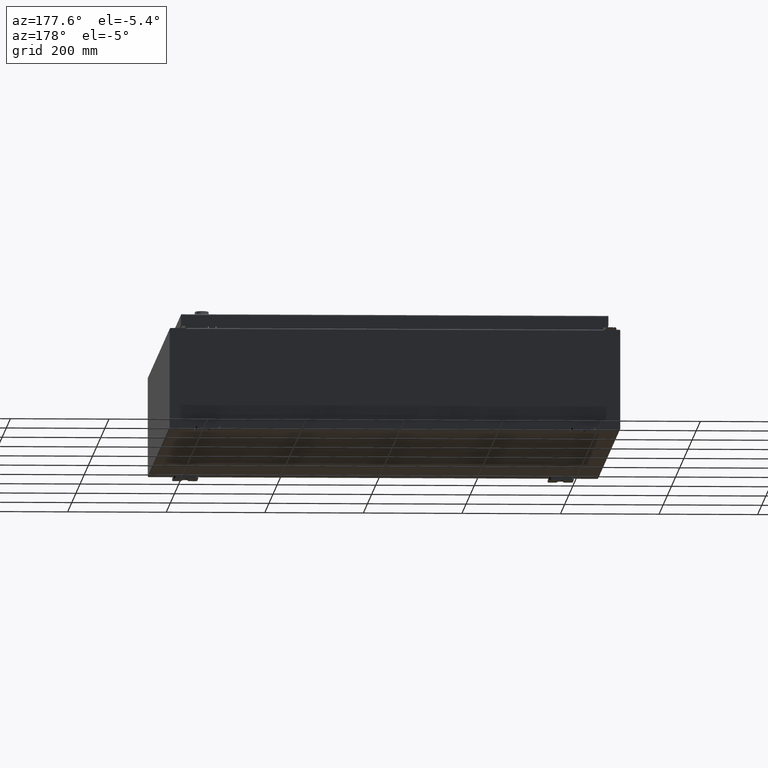
[diagram: clean part render]
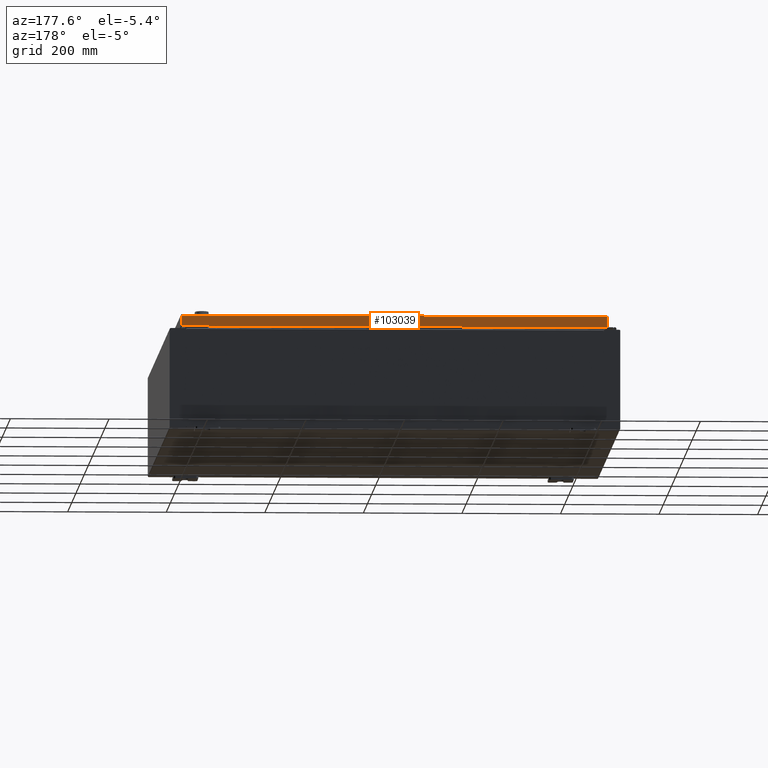
[diagram: same view with one face highlighted and labeled with its STEP entity id]
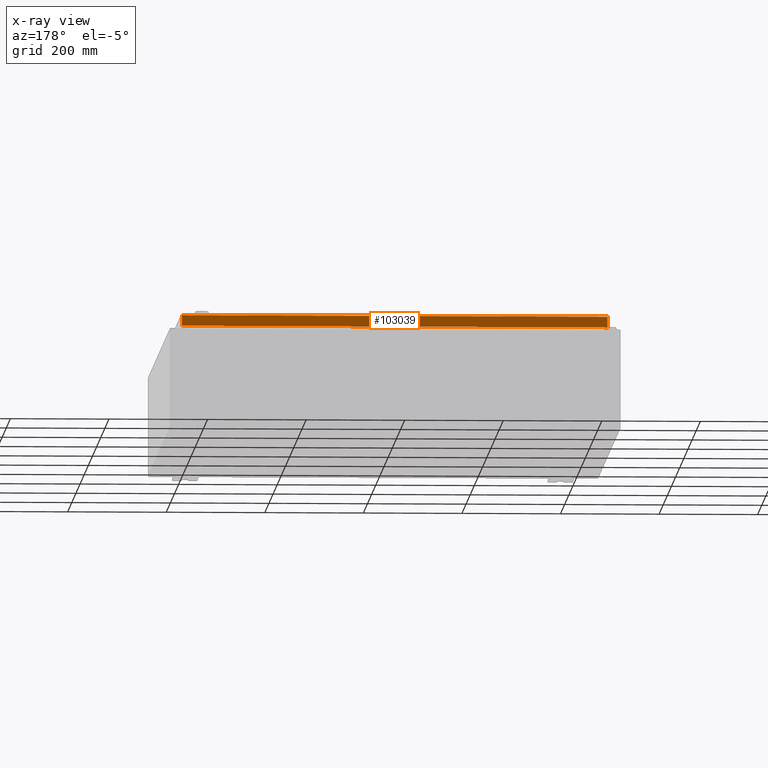
[diagram: x-ray of the same camera — body ghosted, the highlighted face saturated]
A machine part, auxiliary view. The second image highlights one B-rep face of the part: STEP entity #103039.
The next image is the same camera in x-ray: the body ghosted, the highlighted face saturated — about 0% of this face is hidden behind the body in this view.
In plain terms, the highlighted planar face has unit normal (0, -1, -0).
Its self-contained STEP definition (entity closure, byte-faithful):
#1453 = CARTESIAN_POINT ( 'NONE',  ( -16.98915786437626400, 20.09400000000000100, -0.07469999999999962800 ) ) ;
#2980 = CARTESIAN_POINT ( 'NONE',  ( 16.98915786437626700, 20.09400000000000100, 1.020337055859109000E-013 ) ) ;
#7293 = LINE ( 'NONE', #79515, #87198 ) ;
#11506 = DIRECTION ( 'NONE',  ( -0.0000000000000000000, 5.064839849203707700E-015, -1.000000000000000000 ) ) ;
#17182 = CARTESIAN_POINT ( 'NONE',  ( 16.98915786437626700, 20.09400000000000800, -0.9376999999999997600 ) ) ;
#19248 = CARTESIAN_POINT ( 'NONE',  ( -16.98915786437626700, 20.09400000000000100, -0.08769999999999550400 ) ) ;
#19846 = ORIENTED_EDGE ( 'NONE', *, *, #63416, .F. ) ;
#25515 = CARTESIAN_POINT ( 'NONE',  ( -1.261691970586612700E-029, 20.09400000000000100, 1.020337055859109000E-013 ) ) ;
#25525 = EDGE_LOOP ( 'NONE', ( #25771, #97059, #66843, #19846 ) ) ;
#25771 = ORIENTED_EDGE ( 'NONE', *, *, #109453, .F. ) ;
#26476 = VECTOR ( 'NONE', #11506, 39.37007874015748100 ) ;
#27504 = EDGE_CURVE ( 'NONE', #55504, #60664, #7293, .T. ) ;
#43376 = VECTOR ( 'NONE', #63720, 39.37007874015748100 ) ;
#47597 = VERTEX_POINT ( 'NONE', #19248 ) ;
#55504 = VERTEX_POINT ( 'NONE', #78052 ) ;
#55572 = DIRECTION ( 'NONE',  ( 0.0000000000000000000, 5.064839849203707700E-015, -1.000000000000000000 ) ) ;
#55742 = LINE ( 'NONE', #119012, #106072 ) ;
#58990 = VERTEX_POINT ( 'NONE', #83745 ) ;
#60664 = VERTEX_POINT ( 'NONE', #17182 ) ;
#63416 = EDGE_CURVE ( 'NONE', #47597, #55504, #79757, .T. ) ;
#63720 = DIRECTION ( 'NONE',  ( 0.0000000000000000000, 5.064839849203707700E-015, -1.000000000000000000 ) ) ;
#66843 = ORIENTED_EDGE ( 'NONE', *, *, #27504, .F. ) ;
#75403 = PLANE ( 'NONE',  #113829 ) ;
#78052 = CARTESIAN_POINT ( 'NONE',  ( -16.98915786437626400, 20.09400000000000800, -0.9377000000000040900 ) ) ;
#79515 = CARTESIAN_POINT ( 'NONE',  ( -17.07799999999999600, 20.09400000000000800, -0.9377000000000040900 ) ) ;
#79757 = LINE ( 'NONE', #1453, #26476 ) ;
#83745 = CARTESIAN_POINT ( 'NONE',  ( 16.98915786437626700, 20.09400000000000100, -0.08769999999999550400 ) ) ;
#84187 = EDGE_CURVE ( 'NONE', #58990, #60664, #126621, .T. ) ;
#87198 = VECTOR ( 'NONE', #89580, 39.37007874015748100 ) ;
#89580 = DIRECTION ( 'NONE',  ( 1.000000000000000000, 8.758115402030108600E-047, 1.239713195391617600E-016 ) ) ;
#97059 = ORIENTED_EDGE ( 'NONE', *, *, #84187, .T. ) ;
#103039 = ADVANCED_FACE ( 'NONE', ( #113319 ), #75403, .F. ) ;
#106072 = VECTOR ( 'NONE', #129128, 39.37007874015748100 ) ;
#109453 = EDGE_CURVE ( 'NONE', #58990, #47597, #55742, .T. ) ;
#113319 = FACE_OUTER_BOUND ( 'NONE', #25525, .T. ) ;
#113829 = AXIS2_PLACEMENT_3D ( 'NONE', #25515, #115706, #55572 ) ;
#115706 = DIRECTION ( 'NONE',  ( 6.278948793603128200E-031, -1.000000000000000000, -5.064839849203707700E-015 ) ) ;
#119012 = CARTESIAN_POINT ( 'NONE',  ( -17.07799999999999600, 20.09400000000000100, -0.08769999999999550400 ) ) ;
#126621 = LINE ( 'NONE', #2980, #43376 ) ;
#129128 = DIRECTION ( 'NONE',  ( -1.000000000000000000, -6.278948793603129100E-031, -3.245122892416731400E-045 ) ) ;